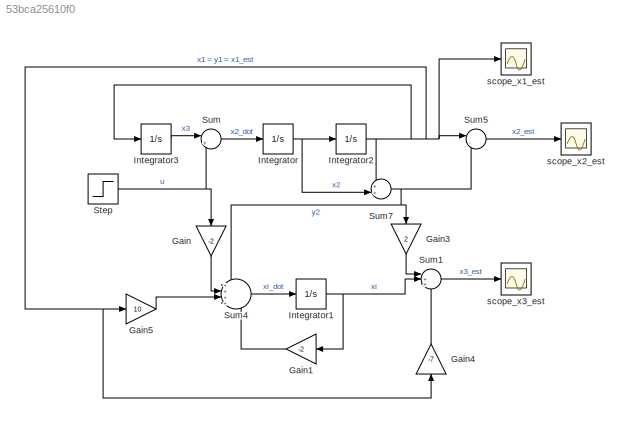
MODEL slx_53bca25610f0
KIND model
CONFIG AbsTol = auto
CONFIG EnableMultiTasking = off
CONFIG FixedStep = auto
CONFIG MaxStep = auto
CONFIG MinStep = auto
CONFIG RelTol = 1e-3
CONFIG SampleTimeConstraint = Unconstrained
CONFIG SolverName = VariableStepAuto
CONFIG StartTime = 0.0
CONFIG StopTime = 1
BLOCK [Gain] Gain
  Gain = -2
  NameLocation = left
BLOCK [Gain] Gain1
  Gain = -2
  NameLocation = top
BLOCK [Gain] Gain3
  Gain = 2
  NameLocation = left
BLOCK [Gain] Gain4
  Gain = -7
  NameLocation = left
BLOCK [Gain] Gain5
  Gain = 10
BLOCK [Integrator] Integrator
BLOCK [Integrator] Integrator1
BLOCK [Integrator] Integrator2
BLOCK [Integrator] Integrator3
BLOCK [Step] Step
  SampleTime = 0
  Time = 0
BLOCK [Sum] Sum
  Inputs = |++
BLOCK [Sum] Sum1
  Inputs = |+++
BLOCK [Sum] Sum4
  Inputs = ++++
  NameLocation = top
BLOCK [Sum] Sum5
  Inputs = |-+
BLOCK [Sum] Sum7
  Inputs = ++|
BLOCK [Scope] scope_x1_est
  Floating = off
  NumInputPorts = 1
  ScopeSpecificationString = Simulink.scopes.TimeScopeBlockCfg('CurrentConfiguration', extmgr.ConfigurationSet(extmgr.Configuration('Core','General UI',true),extmgr.Configuration('Core','Source UI',true),extmgr.Configuration('Sources','WiredSimulink',true,'DataLoggingVariableName','ScopeData2'),extmgr.Configuration('Visuals','Time Domain',true,'SerializedDisplays',{struct('MinYLimReal','-0.06354','MaxYLimReal','0.5719','YLabe...<+1399ch>
BLOCK [Scope] scope_x2_est
  Floating = off
  NumInputPorts = 1
  ScopeSpecificationString = Simulink.scopes.TimeScopeBlockCfg('CurrentConfiguration', extmgr.ConfigurationSet(extmgr.Configuration('Core','General UI',true),extmgr.Configuration('Core','Source UI',true),extmgr.Configuration('Sources','WiredSimulink',true),extmgr.Configuration('Visuals','Time Domain',true,'SerializedDisplays',{struct('MinYLimReal','-0.13023','MaxYLimReal','1.1721','YLabelReal','','MinYLimMag','0.00000','MaxYL...<+1351ch>
BLOCK [Scope] scope_x3_est
  Floating = off
  NumInputPorts = 1
  ScopeSpecificationString = Simulink.scopes.TimeScopeBlockCfg('CurrentConfiguration', extmgr.ConfigurationSet(extmgr.Configuration('Core','General UI',true),extmgr.Configuration('Core','Source UI',true),extmgr.Configuration('Sources','WiredSimulink',true,'DataLoggingVariableName','ScopeData1'),extmgr.Configuration('Visuals','Time Domain',true,'SerializedDisplays',{struct('MinYLimReal','-0.02101','MaxYLimReal','0.18907','YLab...<+1395ch>
LINE Gain1:1 -> Sum4:4
LINE Gain3:1 -> Sum1:1
LINE Gain4:1 -> Sum1:3
LINE Gain5:1 -> Sum4:3
LINE Gain:1 -> Sum4:2
NET Integrator1:1 -> Gain1:1, Sum1:2
NET Integrator2:1 -> Gain4:1, Gain5:1, Integrator3:1, Sum5:1, Sum7:1, scope_x1_est:1
LINE Integrator3:1 -> Sum:1
NET Integrator:1 -> Integrator2:1, Sum7:2
NET Step:1 -> Gain:1, Sum:2
LINE Sum1:1 -> scope_x3_est:1
LINE Sum4:1 -> Integrator1:1
LINE Sum5:1 -> scope_x2_est:1
NET Sum7:1 -> Gain3:1, Sum4:1, Sum5:2
LINE Sum:1 -> Integrator:1
note: NET lines group one-source signal fan-out (src -> all destinations, sorted); 1:1 wires keep LINE
